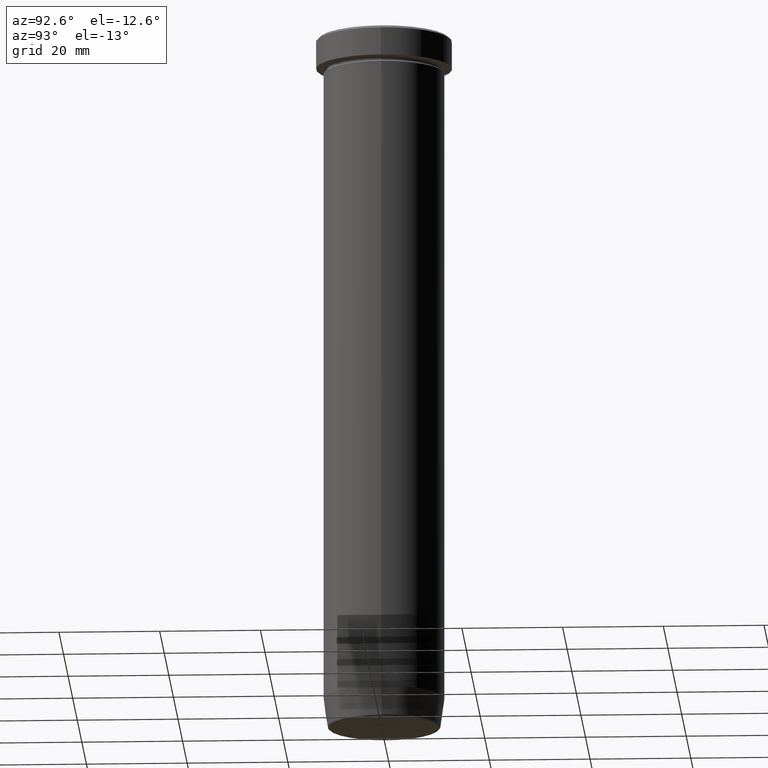
[diagram: clean part render]
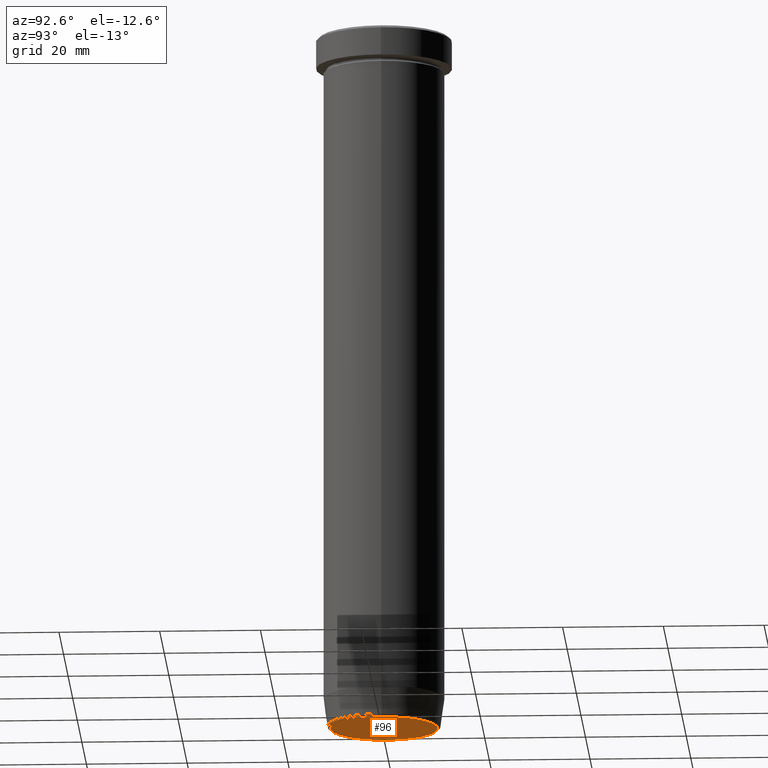
[diagram: same view with one face highlighted and labeled with its STEP entity id]
A machine part, auxiliary view. The second image highlights one B-rep face of the part: STEP entity #96.
In plain terms, the highlighted planar face has unit normal (0, -0, 1).
Its self-contained STEP definition (entity closure, byte-faithful):
#13 = DIRECTION ( 'NONE',  ( 1.000000000000000000, 0.000000000000000000, 0.000000000000000000 ) ) ;
#18 = DIRECTION ( 'NONE',  ( 0.000000000000000000, 0.000000000000000000, -1.000000000000000000 ) ) ;
#38 = DIRECTION ( 'NONE',  ( 1.000000000000000000, 0.000000000000000000, 0.000000000000000000 ) ) ;
#65 = FACE_OUTER_BOUND ( 'NONE', #470, .T. ) ;
#96 = ADVANCED_FACE ( 'NONE', ( #65 ), #162, .F. ) ;
#111 = CIRCLE ( 'NONE', #406, 10.72211162287753439 ) ;
#121 = DIRECTION ( 'NONE',  ( 1.000000000000000000, 0.000000000000000000, 0.000000000000000000 ) ) ;
#162 = PLANE ( 'NONE',  #397 ) ;
#206 = CIRCLE ( 'NONE', #483, 10.72211162287753439 ) ;
#219 = CARTESIAN_POINT ( 'NONE',  ( 10.72211162287753439, 0.000000000000000000, -140.0000000000000000 ) ) ;
#231 = EDGE_CURVE ( 'NONE', #232, #491, #111, .T. ) ;
#232 = VERTEX_POINT ( 'NONE', #219 ) ;
#235 = ORIENTED_EDGE ( 'NONE', *, *, #231, .T. ) ;
#298 = DIRECTION ( 'NONE',  ( 0.000000000000000000, -0.000000000000000000, 1.000000000000000000 ) ) ;
#345 = CARTESIAN_POINT ( 'NONE',  ( 0.000000000000000000, 7.347880794884119933E-15, -140.0000000000000000 ) ) ;
#397 = AXIS2_PLACEMENT_3D ( 'NONE', #345, #298, #121 ) ;
#406 = AXIS2_PLACEMENT_3D ( 'NONE', #450, #447, #38 ) ;
#418 = CARTESIAN_POINT ( 'NONE',  ( -10.72211162287753439, 1.343398183422815235E-15, -140.0000000000000000 ) ) ;
#422 = CARTESIAN_POINT ( 'NONE',  ( 0.000000000000000000, 0.000000000000000000, -140.0000000000000000 ) ) ;
#447 = DIRECTION ( 'NONE',  ( 0.000000000000000000, 0.000000000000000000, -1.000000000000000000 ) ) ;
#450 = CARTESIAN_POINT ( 'NONE',  ( 0.000000000000000000, 0.000000000000000000, -140.0000000000000000 ) ) ;
#470 = EDGE_LOOP ( 'NONE', ( #235, #517 ) ) ;
#483 = AXIS2_PLACEMENT_3D ( 'NONE', #422, #18, #13 ) ;
#491 = VERTEX_POINT ( 'NONE', #418 ) ;
#517 = ORIENTED_EDGE ( 'NONE', *, *, #584, .T. ) ;
#584 = EDGE_CURVE ( 'NONE', #491, #232, #206, .T. ) ;